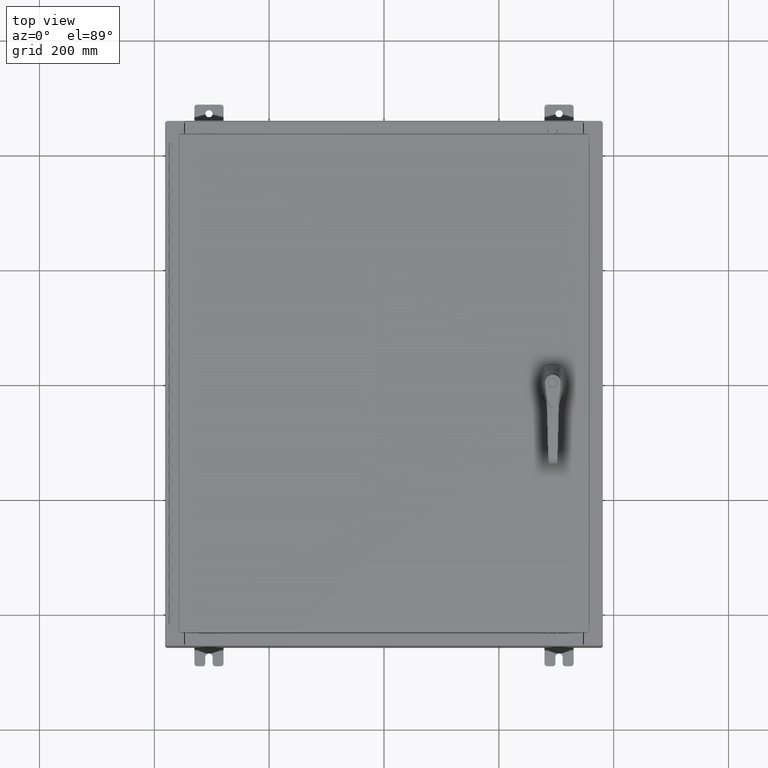
[diagram: clean part render]
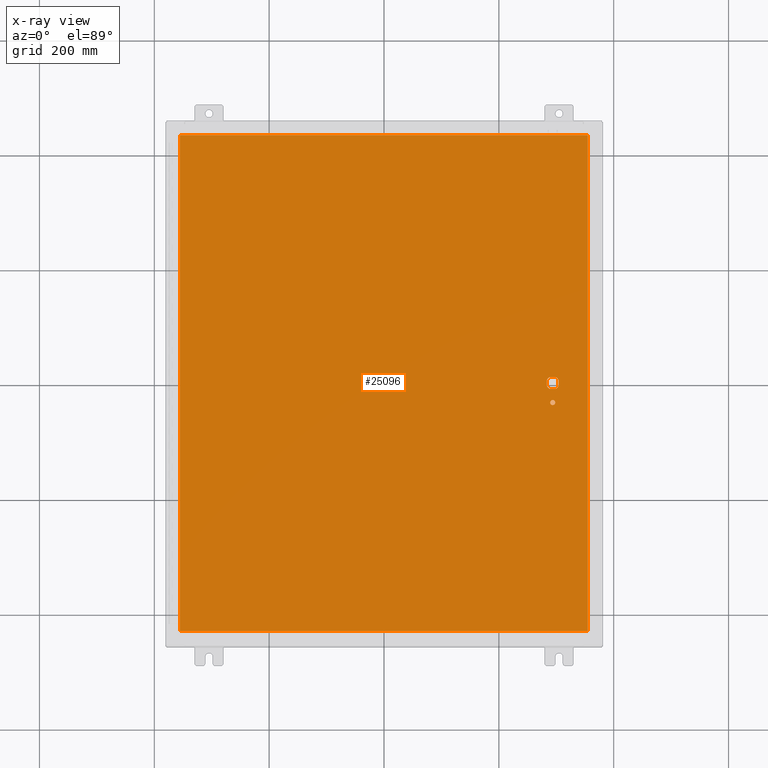
[diagram: x-ray — body ghosted, one internal face saturated and labeled with its STEP entity id]
A machine part, top view, then the same camera in x-ray: the body is ghosted and one INTERNAL B-rep face — a face not visible from any outside direction — is saturated and labeled: STEP entity #25096.
In plain terms, the highlighted planar face has unit normal (0, 0, -1).
Its self-contained STEP definition (entity closure, byte-faithful):
#1028 = LINE ( 'NONE', #120221, #48515 ) ;
#1573 = CARTESIAN_POINT ( 'NONE',  ( 11.98099999999992000, 6.538620706741751200E-014, -0.07470000000000003000 ) ) ;
#5250 = ORIENTED_EDGE ( 'NONE', *, *, #48452, .T. ) ;
#6256 = DIRECTION ( 'NONE',  ( 0.0000000000000000000, -1.000000000000000000, 0.0000000000000000000 ) ) ;
#7075 = ORIENTED_EDGE ( 'NONE', *, *, #120834, .T. ) ;
#8534 = FACE_OUTER_BOUND ( 'NONE', #96707, .T. ) ;
#10903 = VECTOR ( 'NONE', #44464, 39.37007874015748100 ) ;
#11093 = DIRECTION ( 'NONE',  ( 5.457491617345625000E-015, -1.000000000000000000, 0.0000000000000000000 ) ) ;
#11157 = ORIENTED_EDGE ( 'NONE', *, *, #79858, .F. ) ;
#11680 = LINE ( 'NONE', #79862, #87429 ) ;
#12506 = LINE ( 'NONE', #1573, #88263 ) ;
#12589 = DIRECTION ( 'NONE',  ( -0.0000000000000000000, -0.0000000000000000000, 1.000000000000000000 ) ) ;
#13609 = CIRCLE ( 'NONE', #51655, 0.4499999999999168000 ) ;
#13881 = EDGE_CURVE ( 'NONE', #87317, #81483, #52878, .T. ) ;
#15318 = ORIENTED_EDGE ( 'NONE', *, *, #106708, .T. ) ;
#16165 = ORIENTED_EDGE ( 'NONE', *, *, #22786, .T. ) ;
#18278 = EDGE_CURVE ( 'NONE', #90338, #61923, #114794, .T. ) ;
#18708 = VECTOR ( 'NONE', #44414, 39.37007874015748100 ) ;
#18883 = VERTEX_POINT ( 'NONE', #49630 ) ;
#20038 = ORIENTED_EDGE ( 'NONE', *, *, #115934, .T. ) ;
#22786 = EDGE_CURVE ( 'NONE', #18883, #72102, #37131, .T. ) ;
#23167 = DIRECTION ( 'NONE',  ( -0.0000000000000000000, -0.0000000000000000000, 1.000000000000000000 ) ) ;
#23219 = DIRECTION ( 'NONE',  ( -0.0000000000000000000, -0.0000000000000000000, 1.000000000000000000 ) ) ;
#25019 = CARTESIAN_POINT ( 'NONE',  ( 11.40649999999999200, -1.338000000000000100, -0.07470000000000003000 ) ) ;
#25096 = ADVANCED_FACE ( 'NONE', ( #30812, #8534, #106597 ), #63300, .T. ) ;
#25371 = CARTESIAN_POINT ( 'NONE',  ( -13.99030000000000700, -17.00630000000000000, -0.07470000000000019700 ) ) ;
#25573 = CARTESIAN_POINT ( 'NONE',  ( 0.0000000000000000000, 0.0000000000000000000, -0.07470000000000000300 ) ) ;
#26495 = VERTEX_POINT ( 'NONE', #107030 ) ;
#26504 = ORIENTED_EDGE ( 'NONE', *, *, #13881, .T. ) ;
#26715 = CARTESIAN_POINT ( 'NONE',  ( 13.99029999999999200, 17.00630000000000300, -0.07470000000000000300 ) ) ;
#27179 = CARTESIAN_POINT ( 'NONE',  ( 11.74949999999999400, -1.338000000000000100, -0.07470000000000003000 ) ) ;
#28849 = EDGE_CURVE ( 'NONE', #72102, #59464, #72165, .T. ) ;
#30812 = FACE_BOUND ( 'NONE', #49653, .T. ) ;
#31301 = EDGE_CURVE ( 'NONE', #77517, #66878, #55535, .T. ) ;
#32599 = DIRECTION ( 'NONE',  ( 0.0000000000000000000, 1.000000000000000000, 0.0000000000000000000 ) ) ;
#33340 = EDGE_CURVE ( 'NONE', #66878, #56786, #36168, .T. ) ;
#35139 = DIRECTION ( 'NONE',  ( -1.000000000000000000, 0.0000000000000000000, -0.0000000000000000000 ) ) ;
#36168 = LINE ( 'NONE', #25371, #10903 ) ;
#37060 = DIRECTION ( 'NONE',  ( -0.0000000000000000000, -0.0000000000000000000, 1.000000000000000000 ) ) ;
#37131 = CIRCLE ( 'NONE', #70109, 0.4499999999999168000 ) ;
#43802 = DIRECTION ( 'NONE',  ( -0.0000000000000000000, -0.0000000000000000000, 1.000000000000000000 ) ) ;
#44414 = DIRECTION ( 'NONE',  ( 0.0000000000000000000, -1.000000000000000000, 0.0000000000000000000 ) ) ;
#44464 = DIRECTION ( 'NONE',  ( 1.000000000000000000, -0.0000000000000000000, -0.0000000000000000000 ) ) ;
#44676 = CARTESIAN_POINT ( 'NONE',  ( 11.57799999999999400, 0.0000000000000000000, -0.07470000000000003000 ) ) ;
#45675 = CARTESIAN_POINT ( 'NONE',  ( 11.98099999999992000, 0.2002273707563075900, -0.07470000000000003000 ) ) ;
#46415 = DIRECTION ( 'NONE',  ( -1.000000000000000000, 0.0000000000000000000, 0.0000000000000000000 ) ) ;
#48452 = EDGE_CURVE ( 'NONE', #61923, #90338, #120353, .T. ) ;
#48515 = VECTOR ( 'NONE', #82462, 39.37007874015748100 ) ;
#48640 = ORIENTED_EDGE ( 'NONE', *, *, #112184, .F. ) ;
#49362 = ORIENTED_EDGE ( 'NONE', *, *, #18278, .T. ) ;
#49630 = CARTESIAN_POINT ( 'NONE',  ( 11.37777262924368300, 0.4029999999999252000, -0.07470000000000003000 ) ) ;
#49653 = EDGE_LOOP ( 'NONE', ( #49362, #5250 ) ) ;
#50533 = CARTESIAN_POINT ( 'NONE',  ( -13.99030000000000700, 17.00630000000000300, -0.07470000000000000300 ) ) ;
#51655 = AXIS2_PLACEMENT_3D ( 'NONE', #44676, #111113, #54249 ) ;
#52096 = CARTESIAN_POINT ( 'NONE',  ( 11.98099999999992000, -0.2002273707563067300, -0.07470000000000003000 ) ) ;
#52878 = CIRCLE ( 'NONE', #68858, 0.4499999999999168000 ) ;
#54249 = DIRECTION ( 'NONE',  ( -1.000000000000000000, -5.329070518200740300E-015, 0.0000000000000000000 ) ) ;
#55535 = LINE ( 'NONE', #63082, #86757 ) ;
#56786 = VERTEX_POINT ( 'NONE', #64550 ) ;
#57367 = ORIENTED_EDGE ( 'NONE', *, *, #33340, .F. ) ;
#59464 = VERTEX_POINT ( 'NONE', #102748 ) ;
#61923 = VERTEX_POINT ( 'NONE', #25019 ) ;
#63082 = CARTESIAN_POINT ( 'NONE',  ( -13.99030000000000700, 17.00630000000000000, -0.07470000000000019700 ) ) ;
#63300 = PLANE ( 'NONE',  #109245 ) ;
#64231 = DIRECTION ( 'NONE',  ( 1.000000000000000000, 0.0000000000000000000, 0.0000000000000000000 ) ) ;
#64550 = CARTESIAN_POINT ( 'NONE',  ( 13.99029999999999200, -17.00630000000000000, -0.07470000000000000300 ) ) ;
#66278 = VERTEX_POINT ( 'NONE', #45675 ) ;
#66878 = VERTEX_POINT ( 'NONE', #99562 ) ;
#68858 = AXIS2_PLACEMENT_3D ( 'NONE', #93922, #37060, #103480 ) ;
#69401 = CARTESIAN_POINT ( 'NONE',  ( 11.57799999999999400, 0.0000000000000000000, -0.07470000000000003000 ) ) ;
#70109 = AXIS2_PLACEMENT_3D ( 'NONE', #69401, #12589, #78940 ) ;
#71569 = CIRCLE ( 'NONE', #120018, 0.4499999999999168000 ) ;
#72102 = VERTEX_POINT ( 'NONE', #114633 ) ;
#72165 = LINE ( 'NONE', #91716, #18708 ) ;
#73646 = EDGE_LOOP ( 'NONE', ( #26504, #48640, #105857, #7075, #16165, #121529, #20038, #15318 ) ) ;
#77517 = VERTEX_POINT ( 'NONE', #50533 ) ;
#78759 = LINE ( 'NONE', #103300, #98106 ) ;
#78940 = DIRECTION ( 'NONE',  ( -1.000000000000000000, -5.329070518200740300E-015, 0.0000000000000000000 ) ) ;
#79858 = EDGE_CURVE ( 'NONE', #56786, #102611, #11680, .T. ) ;
#79862 = CARTESIAN_POINT ( 'NONE',  ( 13.99029999999999200, -17.00630000000000000, -0.07470000000000019700 ) ) ;
#80005 = CARTESIAN_POINT ( 'NONE',  ( 11.57799999999999400, -1.338000000000000100, -0.07470000000000003000 ) ) ;
#80069 = CARTESIAN_POINT ( 'NONE',  ( 11.57799999999999400, 0.0000000000000000000, -0.07470000000000003000 ) ) ;
#81483 = VERTEX_POINT ( 'NONE', #52096 ) ;
#82462 = DIRECTION ( 'NONE',  ( -1.000000000000000000, -0.0000000000000000000, -0.0000000000000000000 ) ) ;
#85858 = VERTEX_POINT ( 'NONE', #117668 ) ;
#86757 = VECTOR ( 'NONE', #6256, 39.37007874015748100 ) ;
#87317 = VERTEX_POINT ( 'NONE', #95408 ) ;
#87429 = VECTOR ( 'NONE', #32599, 39.37007874015748100 ) ;
#88263 = VECTOR ( 'NONE', #11093, 39.37007874015748100 ) ;
#89605 = DIRECTION ( 'NONE',  ( -1.000000000000000000, 0.0000000000000000000, 0.0000000000000000000 ) ) ;
#89667 = DIRECTION ( 'NONE',  ( -1.000000000000000000, -1.776356839400246700E-015, 0.0000000000000000000 ) ) ;
#90338 = VERTEX_POINT ( 'NONE', #27179 ) ;
#91716 = CARTESIAN_POINT ( 'NONE',  ( 11.17500000000006600, 0.0000000000000000000, -0.07470000000000003000 ) ) ;
#91971 = DIRECTION ( 'NONE',  ( 0.0000000000000000000, 0.0000000000000000000, -1.000000000000000000 ) ) ;
#93684 = VECTOR ( 'NONE', #64231, 39.37007874015748100 ) ;
#93922 = CARTESIAN_POINT ( 'NONE',  ( 11.57799999999999400, 0.0000000000000000000, -0.07470000000000003000 ) ) ;
#95408 = CARTESIAN_POINT ( 'NONE',  ( 11.77822737075630300, -0.4029999999999252000, -0.07470000000000003000 ) ) ;
#96176 = AXIS2_PLACEMENT_3D ( 'NONE', #80005, #23167, #89605 ) ;
#96707 = EDGE_LOOP ( 'NONE', ( #11157, #57367, #122174, #117949 ) ) ;
#98106 = VECTOR ( 'NONE', #46415, 39.37007874015748100 ) ;
#99286 = EDGE_CURVE ( 'NONE', #102611, #77517, #1028, .T. ) ;
#99562 = CARTESIAN_POINT ( 'NONE',  ( -13.99030000000000700, -17.00630000000000000, -0.07470000000000000300 ) ) ;
#100685 = CARTESIAN_POINT ( 'NONE',  ( 11.57799999999999400, -1.338000000000000100, -0.07470000000000003000 ) ) ;
#102611 = VERTEX_POINT ( 'NONE', #26715 ) ;
#102748 = CARTESIAN_POINT ( 'NONE',  ( 11.17500000000006600, -0.2002273707563079800, -0.07470000000000003000 ) ) ;
#103300 = CARTESIAN_POINT ( 'NONE',  ( 0.0000000000000000000, 0.4029999999999252000, -0.07470000000000003000 ) ) ;
#103480 = DIRECTION ( 'NONE',  ( -1.000000000000000000, -1.776356839400246700E-015, 0.0000000000000000000 ) ) ;
#105857 = ORIENTED_EDGE ( 'NONE', *, *, #116511, .T. ) ;
#106597 = FACE_BOUND ( 'NONE', #73646, .T. ) ;
#106708 = EDGE_CURVE ( 'NONE', #26495, #87317, #121888, .T. ) ;
#107030 = CARTESIAN_POINT ( 'NONE',  ( 11.37777262924368300, -0.4029999999999250300, -0.07470000000000003000 ) ) ;
#109245 = AXIS2_PLACEMENT_3D ( 'NONE', #25573, #91971, #35139 ) ;
#110233 = DIRECTION ( 'NONE',  ( -1.000000000000000000, 0.0000000000000000000, 0.0000000000000000000 ) ) ;
#111113 = DIRECTION ( 'NONE',  ( -0.0000000000000000000, -0.0000000000000000000, 1.000000000000000000 ) ) ;
#112184 = EDGE_CURVE ( 'NONE', #66278, #81483, #12506, .T. ) ;
#112576 = AXIS2_PLACEMENT_3D ( 'NONE', #100685, #43802, #110233 ) ;
#114633 = CARTESIAN_POINT ( 'NONE',  ( 11.17500000000006600, 0.2002273707563075900, -0.07470000000000003000 ) ) ;
#114794 = CIRCLE ( 'NONE', #96176, 0.1715000000000011500 ) ;
#115934 = EDGE_CURVE ( 'NONE', #59464, #26495, #71569, .T. ) ;
#116511 = EDGE_CURVE ( 'NONE', #66278, #85858, #13609, .T. ) ;
#117668 = CARTESIAN_POINT ( 'NONE',  ( 11.77822737075630300, 0.4029999999999250300, -0.07470000000000003000 ) ) ;
#117949 = ORIENTED_EDGE ( 'NONE', *, *, #99286, .F. ) ;
#120018 = AXIS2_PLACEMENT_3D ( 'NONE', #80069, #23219, #89667 ) ;
#120221 = CARTESIAN_POINT ( 'NONE',  ( 13.99029999999999200, 17.00630000000000300, -0.07470000000000129300 ) ) ;
#120353 = CIRCLE ( 'NONE', #112576, 0.1715000000000011500 ) ;
#120834 = EDGE_CURVE ( 'NONE', #85858, #18883, #78759, .T. ) ;
#121504 = CARTESIAN_POINT ( 'NONE',  ( 0.0000000000000000000, -0.4029999999999252000, -0.07470000000000003000 ) ) ;
#121529 = ORIENTED_EDGE ( 'NONE', *, *, #28849, .T. ) ;
#121888 = LINE ( 'NONE', #121504, #93684 ) ;
#122174 = ORIENTED_EDGE ( 'NONE', *, *, #31301, .F. ) ;